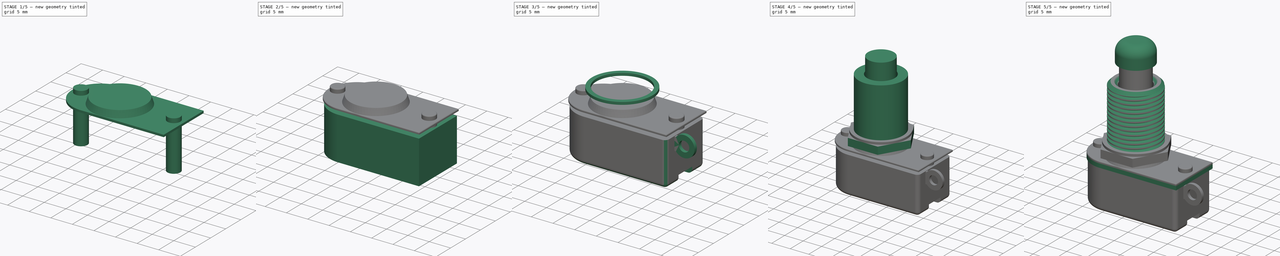
[diagram: build sequence overview — one tinted view per stage of 5, left to right]
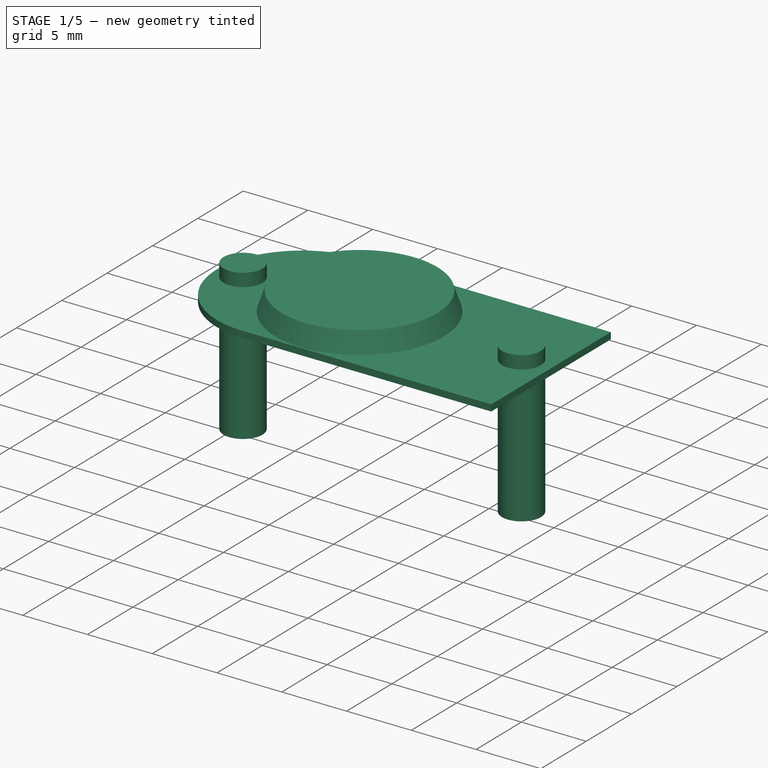
[diagram: stage 1 of 5 — iso view after this stage's code; geometry added in this stage tinted green]
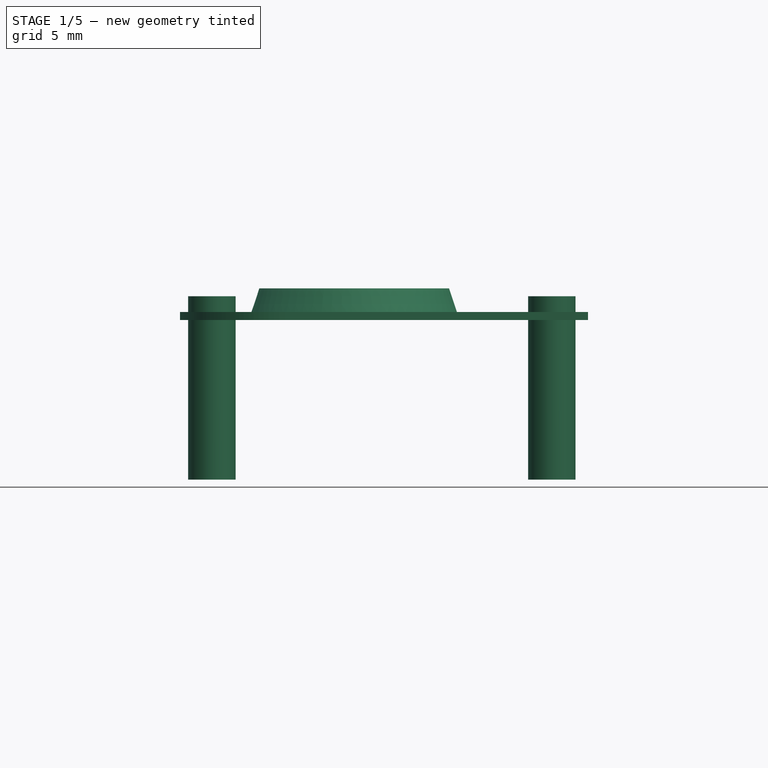
[diagram: stage 1 of 5 — front view after this stage's code; geometry added in this stage tinted green]
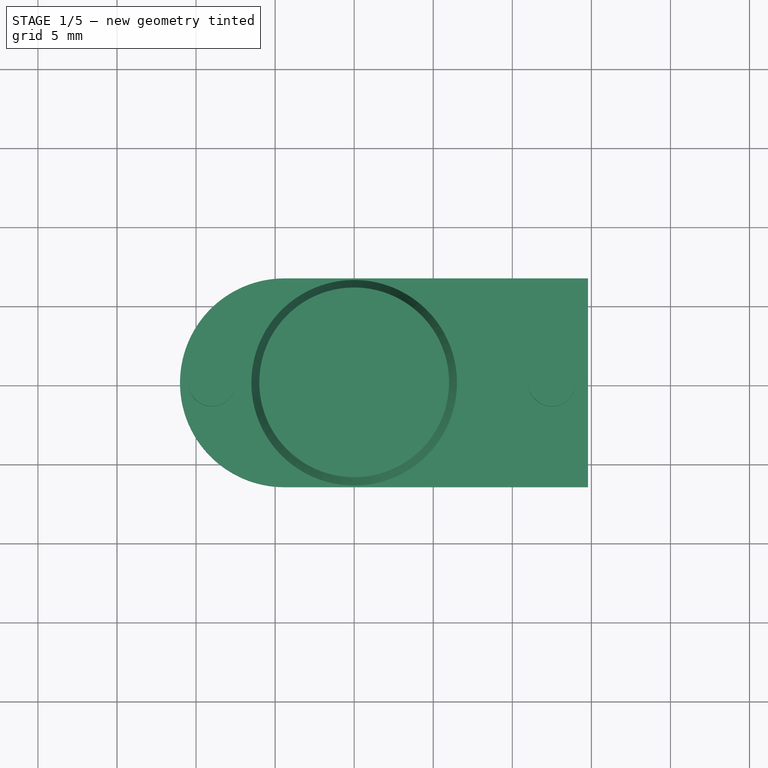
[diagram: stage 1 of 5 — top view after this stage's code; geometry added in this stage tinted green]
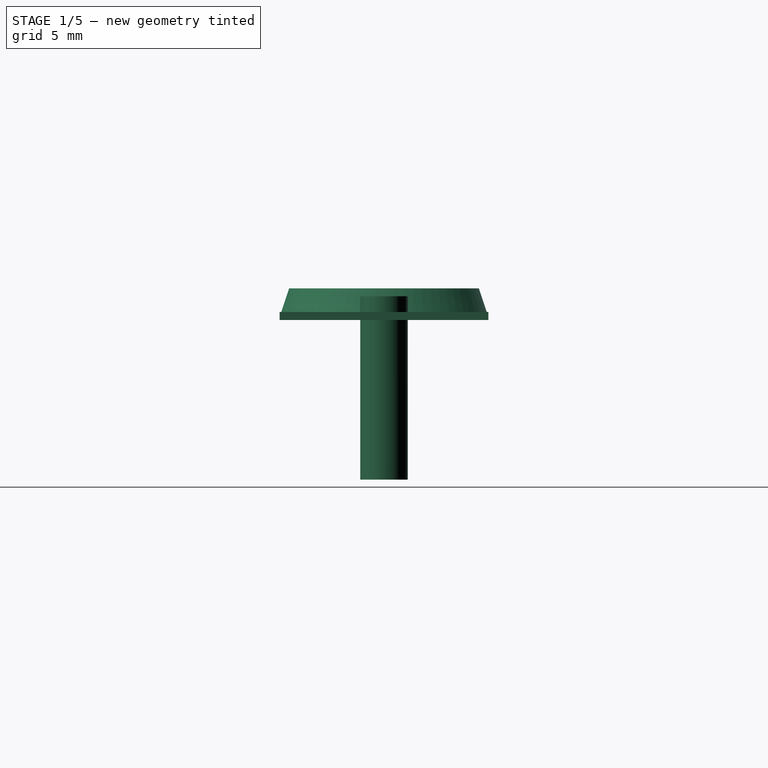
[diagram: stage 1 of 5 — right view after this stage's code; geometry added in this stage tinted green]
FCSTD DOCUMENT  (FreeCAD 0.19R16945 (Git))
Label: Soft Touch SPST Footswitch
License: All rights reserved
LicenseURL: http://en.wikipedia.org/wiki/All_rights_reserved
objects: Sketcher::SketchObject×19, PartDesign::Pad×11, PartDesign::Body×10, PartDesign::Pocket×5, PartDesign::Fillet×5, PartDesign::Plane×5, PartDesign::FeatureBase×2, PartDesign::Chamfer×1, Part::Helix×1, PartDesign::ShapeBinder×1, PartDesign::SubtractivePipe×1, PartDesign::AdditiveLoft×1
note: 80 computed .brp shape members not serialized (recipe doc carries the construction recipe); baked Part::Feature solids carry a one-line shape summary decoded from their .brp

FEATURE [PartDesign::Body] Body001  label="Wafer"
  Group = -> [Sketch001,Pad001]
  Origin = -> Origin001
  Tip = -> Pad001
FEATURE [Sketcher::SketchObject] Sketch002
  AttachmentOffset = pos=(0,0,11.1) rot=(0,0,1;0rad)
  MapMode = 5
  Placement = pos=(0,0,11.1) rot=(0,0,1;0rad)
  Support = -> [XY_Plane002]
  expr: Constraints[11] = Sketch001.Constraints[11]
  expr: Constraints[10] = Sketch001.Constraints[10]
  sketch-geometry (5):
    g0: ArcOfCircle CenterX=-4.41506 CenterY=0 CenterZ=0 NormalX=0 NormalY=0 NormalZ=1 AngleXU=0 Radius=6.6 StartAngle=1.5708 EndAngle=4.71239
    g1: LineSegment StartX=-4.41506 StartY=6.6 StartZ=0 EndX=14.7849 EndY=6.6 EndZ=0
    g2: LineSegment StartX=14.7849 StartY=6.6 StartZ=0 EndX=14.7849 EndY=-6.6 EndZ=0
    g3: LineSegment StartX=14.7849 StartY=-6.6 StartZ=0 EndX=-4.41506 EndY=-6.6 EndZ=0
    g4: GeomPoint X=-11.0151 Y=0 Z=0
  constraints (12):
    c: PointOnObject(g0,g-1)
    c: Tangent(g0,g1) = 1.5708
    c: Coincident(g1,g2)
    c: Coincident(g2,g3)
    c: Coincident(g3,g0)
    c: Horizontal(g3)
    c: Horizontal(g1)
    c: Symmetric(g1,g2,g-1)
    c: PointOnObject(g4,g0)
    c: PointOnObject(g4,g-1)
    c: DistanceX(g4,g2) = 25.8
    c: DistanceY(g2,g2) = 13.2
FEATURE [PartDesign::Pad] Pad002
  Length = 0.5
  Length2 = 100
  Profile = -> Sketch002
  Type = 0
FEATURE [PartDesign::Body] Body003  label="Shaft"
  Group = -> [Sketch005,Pad003,Sketch006,Pocket002,Sketch007,Pad004,Sketch008,Pad005,Fillet,Chamfer,ShapeBinder,Sketch009,SubtractivePipe]
  Origin = -> Origin003
  Placement = pos=(1,0,0) rot=(0,0,1;0rad)
  Tip = -> SubtractivePipe
FEATURE [Sketcher::SketchObject] Sketch010
  MapMode = 5
  Placement = pos=(0,0,11.6) rot=(0,0,1;0rad)
  Support = -> [Pad002]
  sketch-geometry (1):
    g0: Circle CenterX=0 CenterY=0 CenterZ=0 NormalX=0 NormalY=0 NormalZ=1 AngleXU=0 Radius=6.5
  constraints (2):
    c: Coincident(g0,g-1)
    c: Radius(g0) = 6.5
FEATURE [Sketcher::SketchObject] Sketch011
  AttachmentOffset = pos=(0,0,1.5) rot=(0,0,1;0rad)
  MapMode = 5
  Placement = pos=(0,0,13.1) rot=(0,0,1;0rad)
  Support = -> [Pad002]
  sketch-geometry (1):
    g0: Circle CenterX=0 CenterY=0 CenterZ=0 NormalX=0 NormalY=0 NormalZ=1 AngleXU=0 Radius=6
  constraints (2):
    c: Coincident(g0,g-1)
    c: Radius(g0) = 6
FEATURE [PartDesign::AdditiveLoft] AdditiveLoft
  BaseFeature = -> Pad002
  Closed = true
  Profile = -> Sketch010
  Ruled = false
  Sections = -> [Sketch011]
FEATURE [Sketcher::SketchObject] Sketch012
  MapMode = 5
  Placement = pos=(0,0,11.6) rot=(0,0,1;0rad)
  Support = -> [AdditiveLoft]
  sketch-geometry (1):
    g0: Circle CenterX=12.5 CenterY=0 CenterZ=0 NormalX=0 NormalY=0 NormalZ=1 AngleXU=0 Radius=1.5
  constraints (3):
    c: PointOnObject(g0,g-1)
    c: Radius(g0) = 1.5
    c: DistanceX(g-1,g0) = 12.5
FEATURE [PartDesign::Pad] Pad006
  BaseFeature = -> AdditiveLoft
  Length = 1
  Length2 = 10.6
  Profile = -> Sketch012
  Type = 4
FEATURE [Sketcher::SketchObject] Sketch013
  MapMode = 5
  Placement = pos=(0,0,11.6) rot=(0,0,1;0rad)
  Support = -> [Pad006]
  sketch-geometry (1):
    g0: Circle CenterX=-9 CenterY=0 CenterZ=0 NormalX=0 NormalY=0 NormalZ=1 AngleXU=0 Radius=1.5
  constraints (3):
    c: PointOnObject(g0,g-1)
    c: Radius(g0) = 1.5
    c: DistanceX(g0,g-1) = 9
FEATURE [PartDesign::Pad] Pad007
  BaseFeature = -> Pad006
  Length = 1
  Length2 = 10.6
  Profile = -> Sketch013
  Type = 4
FEATURE [PartDesign::Body] Body006  label="Washer"
  Group = -> [Sketch015,Pad009]
  Origin = -> Origin006
  Placement = pos=(1,0,0) rot=(0,0,1;0rad)
  Tip = -> Pad009
FEATURE [Sketcher::SketchObject] Sketch016
  ExternalGeometry = -> [Pad007]
  MapMode = 5
  Placement = pos=(0,0,1) rot=(1,0,0;3.14159rad)
  Support = -> [Pad007]
  sketch-geometry (1):
    g0: Circle CenterX=12.5 CenterY=0 CenterZ=0 NormalX=0 NormalY=0 NormalZ=1 AngleXU=0 Radius=1
  constraints (2):
    c: Coincident(g0,g-3)
    c: Radius(g0) = 1
FEATURE [PartDesign::Pocket] Pocket003
  BaseFeature = -> Pad007
  Length = 0.25
  Length2 = 100
  Profile = -> Sketch016
  Type = 0
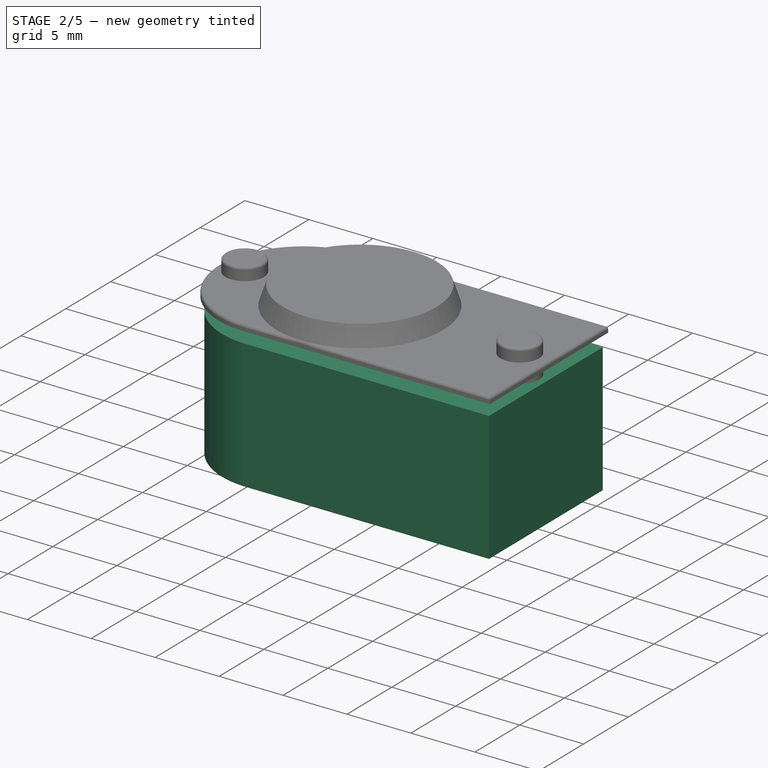
[diagram: stage 2 of 5 — iso view after this stage's code; geometry added in this stage tinted green]
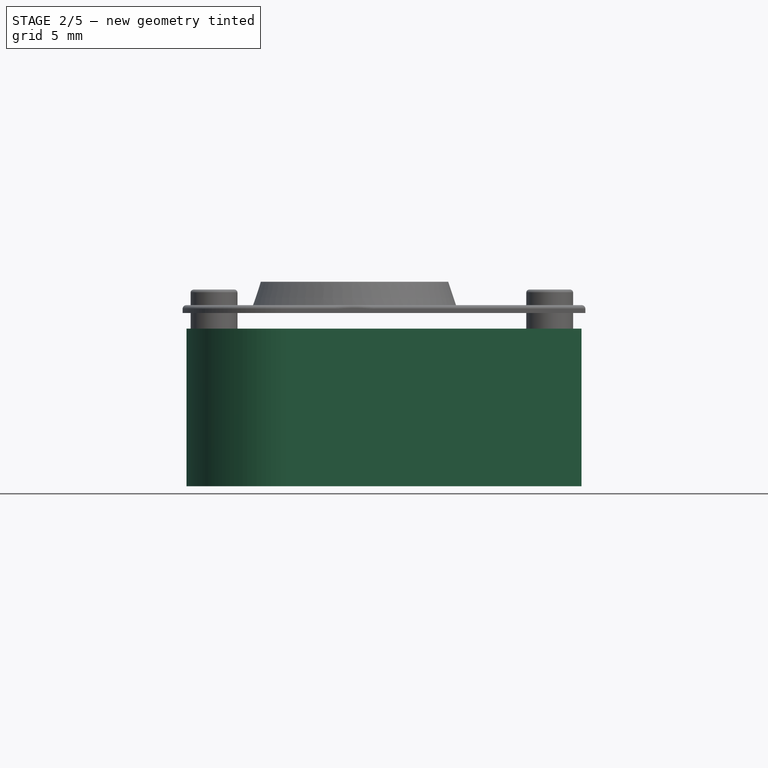
[diagram: stage 2 of 5 — front view after this stage's code; geometry added in this stage tinted green]
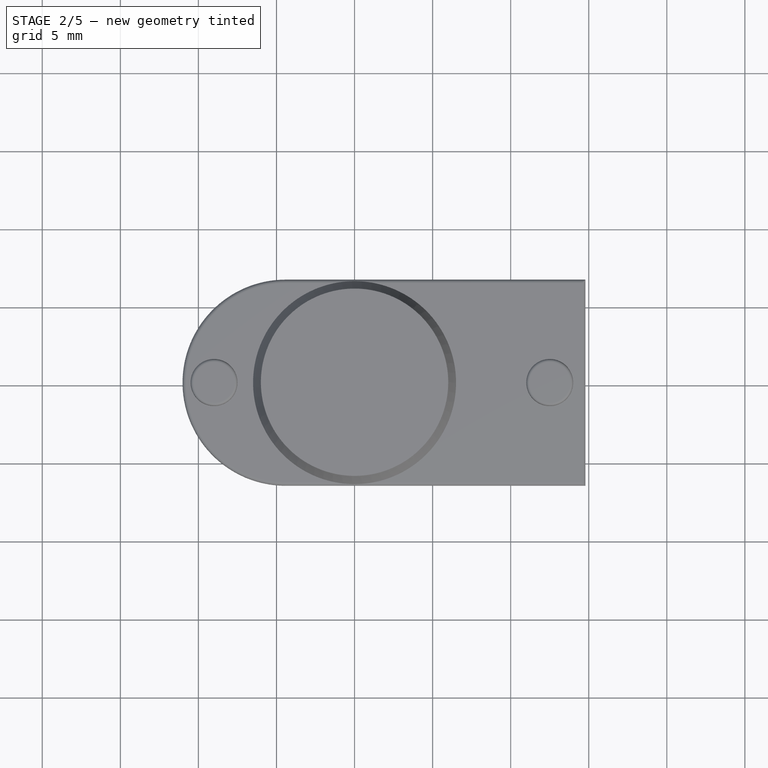
[diagram: stage 2 of 5 — top view after this stage's code; geometry added in this stage tinted green]
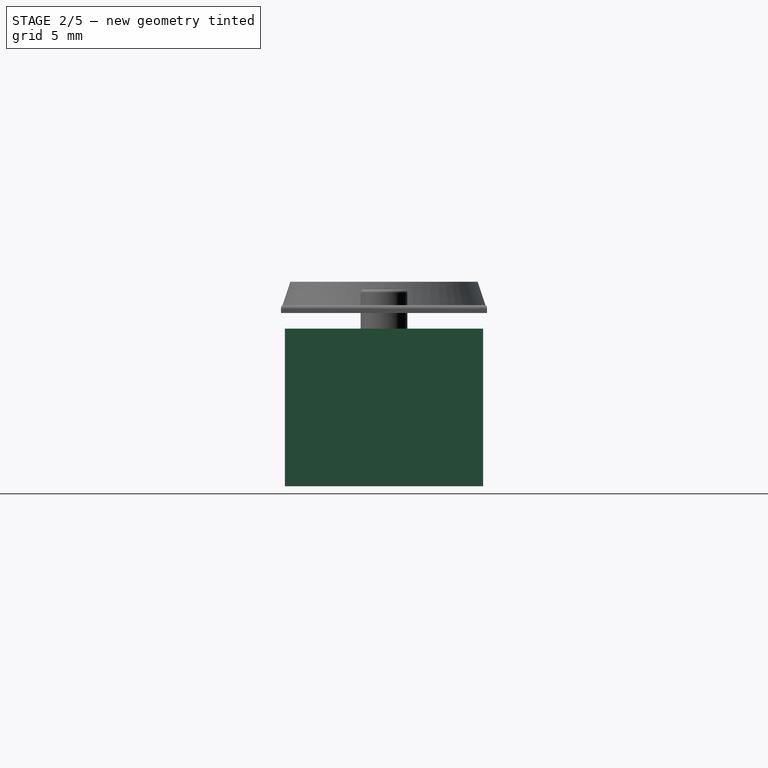
[diagram: stage 2 of 5 — right view after this stage's code; geometry added in this stage tinted green]
FEATURE [Sketcher::SketchObject] Sketch  label="BodyBottomSketch"
  MapMode = 5
  Support = -> [XY_Plane]
  sketch-geometry (5):
    g0: ArcOfCircle CenterX=-4.41112 CenterY=0 CenterZ=0 NormalX=0 NormalY=0 NormalZ=1 AngleXU=0 Radius=6.35 StartAngle=1.5708 EndAngle=4.71239
    g1: LineSegment StartX=-4.41112 StartY=6.35 StartZ=0 EndX=14.5389 EndY=6.35 EndZ=0
    g2: LineSegment StartX=14.5389 StartY=6.35 StartZ=0 EndX=14.5389 EndY=-6.35 EndZ=0
    g3: LineSegment StartX=14.5389 StartY=-6.35 StartZ=0 EndX=-4.41112 EndY=-6.35 EndZ=0
    g4: GeomPoint X=-10.7611 Y=0 Z=0
  constraints (12):
    c: PointOnObject(g0,g-1)
    c: Tangent(g0,g1) = 1.5708
    c: Coincident(g1,g2)
    c: Coincident(g2,g3)
    c: Coincident(g3,g0)
    c: Horizontal(g3)
    c: Horizontal(g1)
    c: Symmetric(g1,g2,g-1)
    c: PointOnObject(g4,g0)
    c: PointOnObject(g4,g-1)
    c: DistanceX(g4,g2) = 25.3
    c: DistanceY(g2,g2) = 12.7
FEATURE [PartDesign::Pad] Pad
  Length = 10.1
  Length2 = 100
  Profile = -> Sketch
  Type = 0
FEATURE [Sketcher::SketchObject] Sketch017
  ExternalGeometry = -> [Pocket003]
  MapMode = 5
  Placement = pos=(0,0,1) rot=(1,0,0;3.14159rad)
  Support = -> [Pocket003]
  sketch-geometry (1):
    g0: Circle CenterX=-9 CenterY=0 CenterZ=0 NormalX=0 NormalY=0 NormalZ=1 AngleXU=0 Radius=1
  constraints (2):
    c: Coincident(g0,g-3)
    c: Radius(g0) = 1
FEATURE [PartDesign::Pocket] Pocket004
  BaseFeature = -> Pocket003
  Length = 0.25
  Length2 = 100
  Profile = -> Sketch017
  Type = 0
FEATURE [PartDesign::Fillet] Fillet001
  Base = -> Pocket004 [Edge20,Edge29,Edge18,Edge28]
  BaseFeature = -> Pocket004
  Radius = 0.2
FEATURE [PartDesign::Fillet] Fillet002
  Base = -> Fillet001 [Edge32,Edge36]
  BaseFeature = -> Fillet001
  Radius = 0.2
FEATURE [PartDesign::Body] Body
  Group = -> [Sketch,Pad,Sketch003,Pocket,Sketch004,Pocket001,Fillet003]
  Origin = -> Origin
  Tip = -> Fillet003
FEATURE [PartDesign::Fillet] Fillet004
  Base = -> Fillet002 [Edge8,Edge9,Edge7,Edge6]
  BaseFeature = -> Fillet002
  Radius = 0.24
FEATURE [PartDesign::Body] Body002  label="Plate"
  Group = -> [Sketch002,Pad002,Sketch010,Sketch011,AdditiveLoft,Sketch012,Pad006,Sketch013,Pad007,Sketch016,Pocket003,Sketch017,Pocket004,Fillet001,Fillet002,Fillet004]
  Origin = -> Origin002
  Tip = -> Fillet004
FEATURE [PartDesign::Plane] DatumPlane003  label="midplane-11"
  AttachmentOffset = pos=(0,0,-11) rot=(0,0,1;0rad)
  Length = 24.2521
  MapMode = 5
  Placement = pos=(-11,2.4e-15,-2.4e-15) rot=(0.57735,0.57735,0.57735;2.0944rad)
  ResizeMode = 0
  Support = -> [YZ_Plane007]
  Width = 26.8521
FEATURE [PartDesign::Plane] DatumPlane004  label="midplane+14.6"
  AttachmentOffset = pos=(0,0,14.6) rot=(0,0,1;0rad)
  Length = 24.2521
  MapMode = 5
  Placement = pos=(14.6,-3.2e-15,3.2e-15) rot=(0.57735,0.57735,0.57735;2.0944rad)
  ResizeMode = 0
  Support = -> [YZ_Plane007]
  Width = 26.8521
FEATURE [PartDesign::Body] Body007  label="RefPlanes"
  Group = -> [DatumPlane,DatumPlane001,DatumPlane002,DatumPlane003,DatumPlane004]
  Origin = -> Origin007
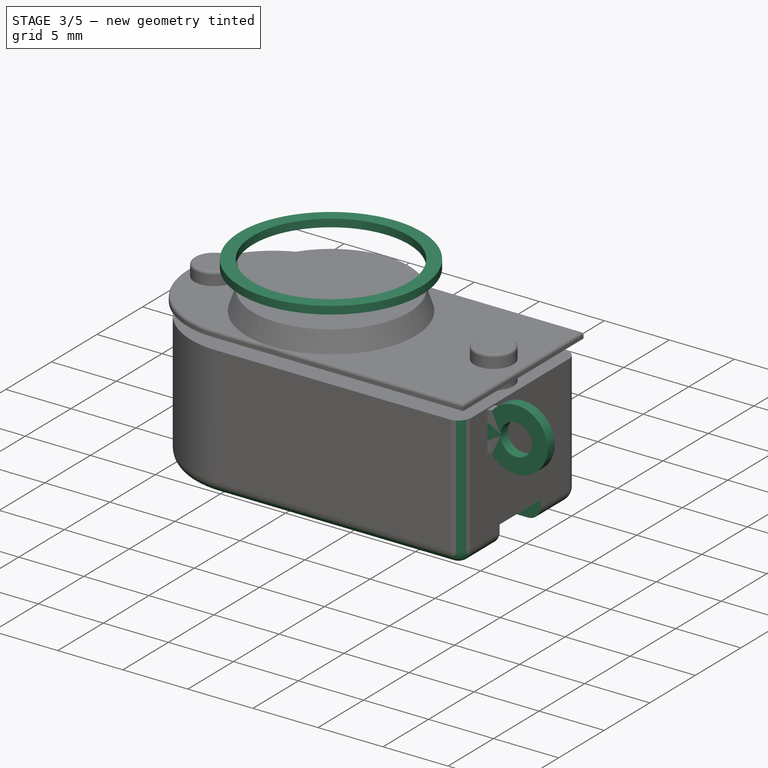
[diagram: stage 3 of 5 — iso view after this stage's code; geometry added in this stage tinted green]
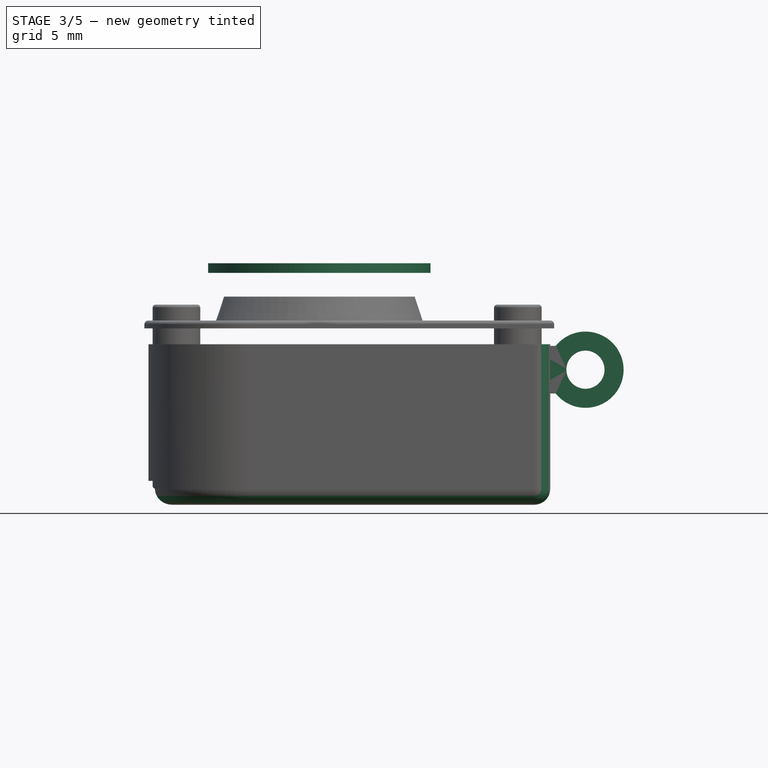
[diagram: stage 3 of 5 — front view after this stage's code; geometry added in this stage tinted green]
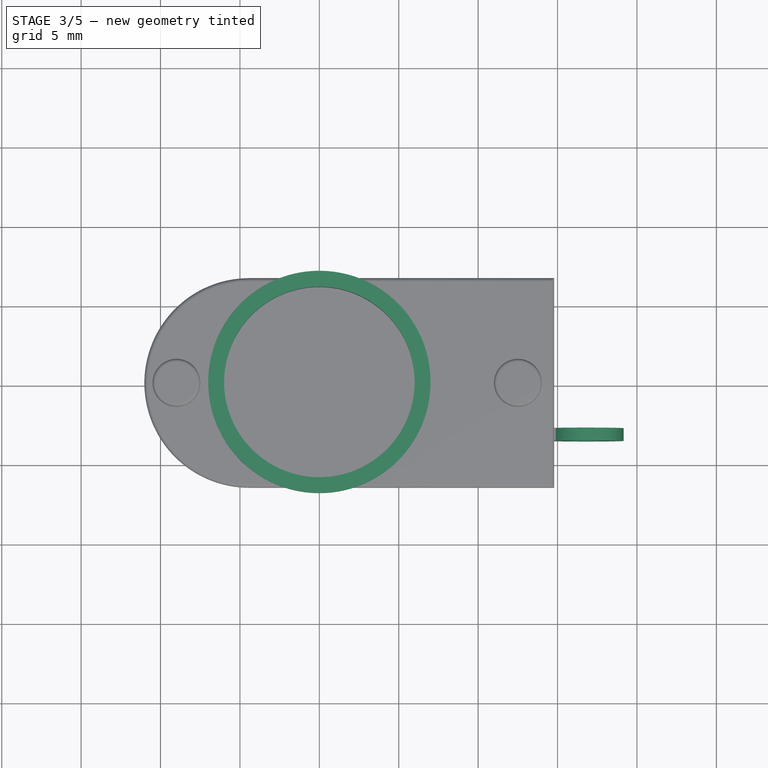
[diagram: stage 3 of 5 — top view after this stage's code; geometry added in this stage tinted green]
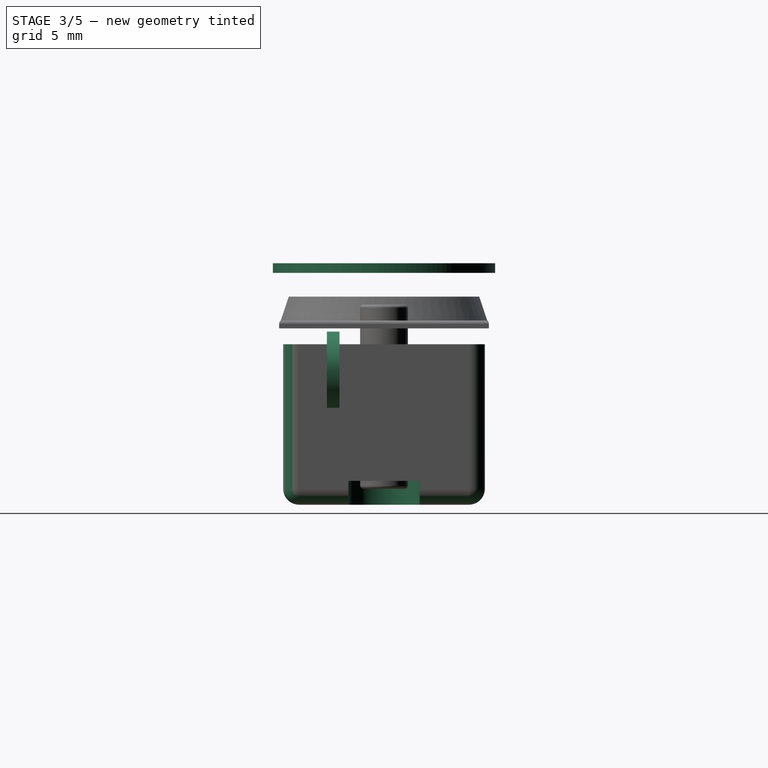
[diagram: stage 3 of 5 — right view after this stage's code; geometry added in this stage tinted green]
FEATURE [Sketcher::SketchObject] Sketch003
  ExternalGeometry = -> [Pad]
  MapMode = 5
  Support = -> [XY_Plane]
  sketch-geometry (5):
    g0: ArcOfCircle CenterX=12.2889 CenterY=0 CenterZ=0 NormalX=0 NormalY=0 NormalZ=1 AngleXU=0 Radius=2.25 StartAngle=1.5708 EndAngle=4.71239
    g1: LineSegment StartX=12.2889 StartY=2.25 StartZ=0 EndX=14.5389 EndY=2.25 EndZ=0
    g2: LineSegment StartX=12.2889 StartY=-2.25 StartZ=0 EndX=14.5389 EndY=-2.25 EndZ=0
    g3: LineSegment StartX=14.5389 StartY=2.25 StartZ=0 EndX=14.5389 EndY=-2.25 EndZ=0
    g4: GeomPoint X=10.0389 Y=0 Z=0
  constraints (14):
    c: PointOnObject(g0,g-1)
    c: Coincident(g1,g0)
    c: PointOnObject(g1,g-3)
    c: Horizontal(g1)
    c: Coincident(g2,g0)
    c: Symmetric(g1,g2,g-1)
    c: Coincident(g3,g1)
    c: Coincident(g3,g2)
    c: DistanceY(g3,g3) = 4.5
    c: PointOnObject(g4,g0)
    c: PointOnObject(g4,g-1)
    c: DistanceX(g4,g1) = 4.5
    c: Vertical(g0,g0)
    c: Vertical(g0,g0)
FEATURE [PartDesign::Pocket] Pocket
  BaseFeature = -> Pad
  Length = 1.5
  Length2 = 100
  Profile = -> Sketch003
  Reversed = true
  Type = 0
FEATURE [Sketcher::SketchObject] Sketch004
  MapMode = 5
  Support = -> [XY_Plane]
  sketch-geometry (5):
    g0: ArcOfCircle CenterX=-8.63201 CenterY=0 CenterZ=0 NormalX=0 NormalY=0 NormalZ=1 AngleXU=0 Radius=2.25 StartAngle=4.71239 EndAngle=7.85398
    g1: LineSegment StartX=-8.63201 StartY=2.25 StartZ=0 EndX=-10.882 EndY=2.25 EndZ=0
    g2: LineSegment StartX=-10.882 StartY=2.25 StartZ=0 EndX=-10.882 EndY=-2.25 EndZ=0
    g3: LineSegment StartX=-10.882 StartY=-2.25 StartZ=0 EndX=-8.63201 EndY=-2.25 EndZ=0
    g4: GeomPoint X=-6.38201 Y=0 Z=0
  constraints (13):
    c: PointOnObject(g0,g-1)
    c: Coincident(g1,g0)
    c: Horizontal(g1)
    c: Coincident(g2,g1)
    c: Coincident(g3,g2)
    c: Coincident(g3,g0)
    c: Horizontal(g3)
    c: Symmetric(g2,g1,g-1)
    c: DistanceY(g2,g2) = 4.5
    c: PointOnObject(g4,g0)
    c: PointOnObject(g4,g-1)
    c: DistanceX(g1,g4) = 4.5
    c: Vertical(g0,g0)
FEATURE [PartDesign::Pocket] Pocket001
  BaseFeature = -> Pocket
  Length = 1.5
  Length2 = 100
  Profile = -> Sketch004
  Reversed = true
  Type = 0
FEATURE [PartDesign::Body] Body005  label="Nut2"
  Group = -> [Clone]
  Origin = -> Origin005
  Placement = pos=(1,0,2.6) rot=(0,0,1;0rad)
  Tip = -> Clone
FEATURE [Sketcher::SketchObject] Sketch015
  AttachmentOffset = pos=(0,0,14.6) rot=(0,0,1;0rad)
  MapMode = 5
  Placement = pos=(0,0,14.6) rot=(0,0,1;0rad)
  Support = -> [XY_Plane006]
  sketch-geometry (2):
    g0: Circle CenterX=0 CenterY=0 CenterZ=0 NormalX=0 NormalY=0 NormalZ=1 AngleXU=0 Radius=6
    g1: Circle CenterX=0 CenterY=0 CenterZ=0 NormalX=0 NormalY=0 NormalZ=1 AngleXU=0 Radius=7
  constraints (4):
    c: Coincident(g0,g-1)
    c: Coincident(g1,g0)
    c: Radius(g0) = 6
    c: Radius(g1) = 7
FEATURE [PartDesign::Pad] Pad009
  Length = 0.6
  Length2 = 100
  Profile = -> Sketch015
  Type = 0
FEATURE [PartDesign::Plane] DatumPlane  label="z=0"
  Length = 30.1255
  MapMode = 5
  ResizeMode = 0
  Support = -> [XY_Plane007]
  Width = 24.5255
FEATURE [PartDesign::Plane] DatumPlane001  label="z=12.6"
  AttachmentOffset = pos=(0,0,12.6) rot=(0,0,1;0rad)
  Length = 30.1255
  MapMode = 5
  Placement = pos=(0,0,12.6) rot=(0,0,1;0rad)
  ResizeMode = 0
  Support = -> [XY_Plane007]
  Width = 24.5255
FEATURE [Sketcher::SketchObject] Sketch018
  AttachmentOffset = pos=(0,8.5,3.2) rot=(0,0,1;0rad)
  MapMode = 5
  Placement = pos=(0,-3.2,8.5) rot=(1,0,0;1.5708rad)
  Support = -> [XZ_Plane008]
  sketch-geometry (6):
    g0: Circle CenterX=16.7579 CenterY=0 CenterZ=0 NormalX=0 NormalY=0 NormalZ=1 AngleXU=0 Radius=1.2
    g1: ArcOfCircle CenterX=16.7579 CenterY=0 CenterZ=0 NormalX=0 NormalY=0 NormalZ=1 AngleXU=0 Radius=2.4 StartAngle=3.81672 EndAngle=8.74965
    g2: LineSegment StartX=14.8844 StartY=-1.5 StartZ=0 EndX=13.0579 EndY=-1.5 EndZ=0
    g3: GeomPoint X=19.1579 Y=0 Z=0
    g4: LineSegment StartX=14.8844 StartY=1.5 StartZ=0 EndX=13.0579 EndY=1.5 EndZ=0
    g5: LineSegment StartX=13.0579 StartY=1.5 StartZ=0 EndX=13.0579 EndY=-1.5 EndZ=0
  constraints (15):
    c: PointOnObject(g0,g-1)
    c: Radius(g0) = 1.2
    c: Coincident(g1,g0)
    c: Coincident(g2,g1)
    c: Horizontal(g2)
    c: Radius(g1) = 2.4
    c: PointOnObject(g3,g1)
    c: PointOnObject(g3,g-1)
    c: DistanceX(g2,g3) = 6.1
    c: Coincident(g4,g1)
    c: Horizontal(g4)
    c: Coincident(g5,g4)
    c: Coincident(g5,g2)
    c: Symmetric(g4,g2,g-1)
    c: DistanceY(g5,g5) = 3
FEATURE [PartDesign::Pad] Pad010
  Length = 0.8
  Length2 = 100
  Midplane = true
  Placement = pos=(0,0,0) rot=(1,0,0;1.5708rad)
  Profile = -> Sketch018
  Type = 0
FEATURE [PartDesign::Body] Body008  label="Pin1"
  Group = -> [Sketch018,Pad010]
  Origin = -> Origin008
  Tip = -> Pad010
FEATURE [PartDesign::FeatureBase] Clone001
  BaseFeature = -> Body008
FEATURE [PartDesign::Body] Body009  label="Pin2"
  Group = -> [Clone001]
  Origin = -> Origin009
  Placement = pos=(0,6.4,0) rot=(0,0,1;0rad)
  Tip = -> Clone001
FEATURE [PartDesign::Plane] DatumPlane002  label="midplane"
  Length = 24.2521
  MapMode = 5
  Placement = pos=(0,0,0) rot=(0.57735,0.57735,0.57735;2.0944rad)
  ResizeMode = 0
  Support = -> [YZ_Plane007]
  Width = 26.8521
FEATURE [PartDesign::Fillet] Fillet003
  Base = -> Pocket001 [Edge24,Edge28,Edge15,Edge14,Edge10,Edge9,Edge1,Edge5]
  BaseFeature = -> Pocket001
  Radius = 1
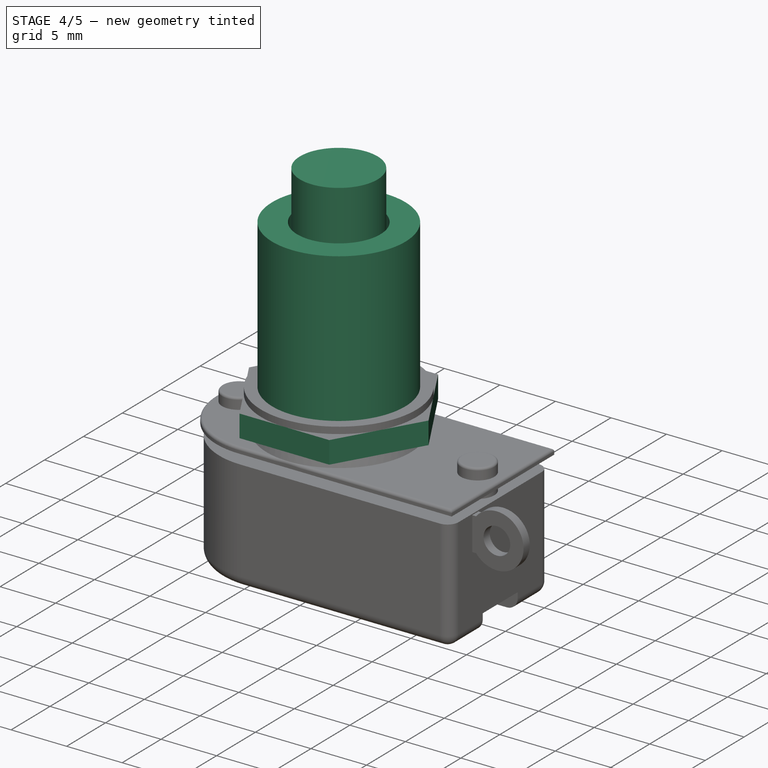
[diagram: stage 4 of 5 — iso view after this stage's code; geometry added in this stage tinted green]
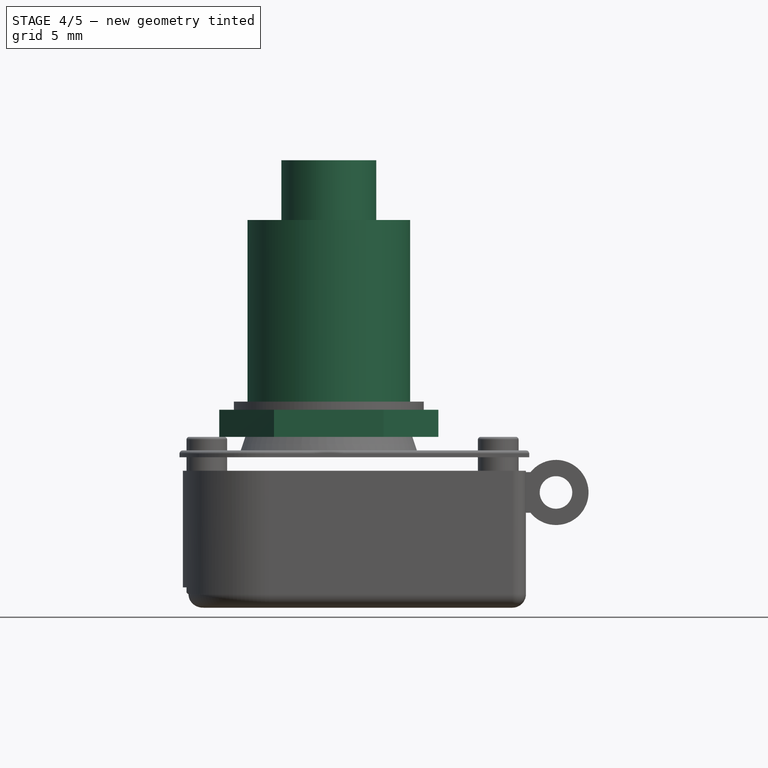
[diagram: stage 4 of 5 — front view after this stage's code; geometry added in this stage tinted green]
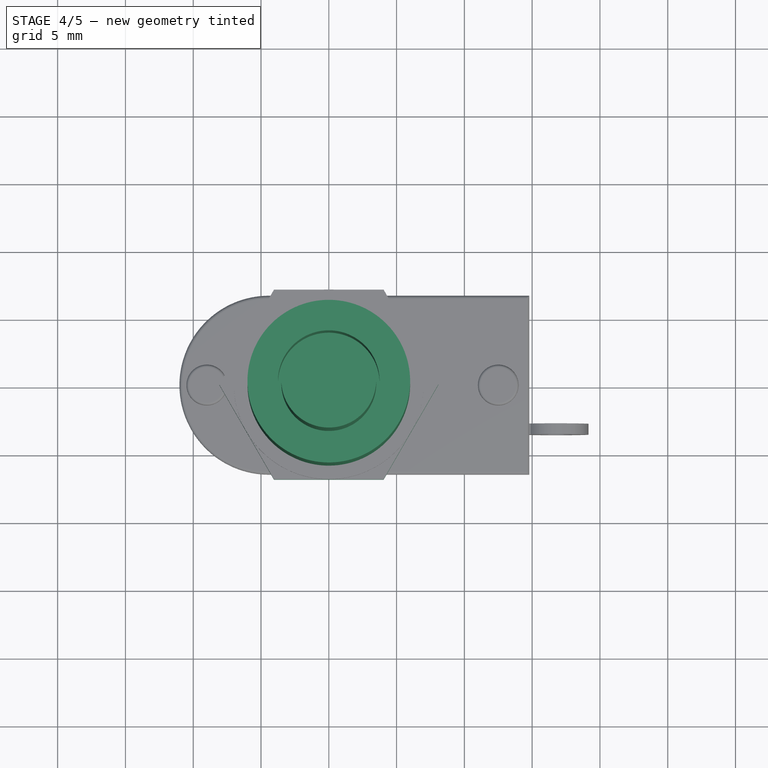
[diagram: stage 4 of 5 — top view after this stage's code; geometry added in this stage tinted green]
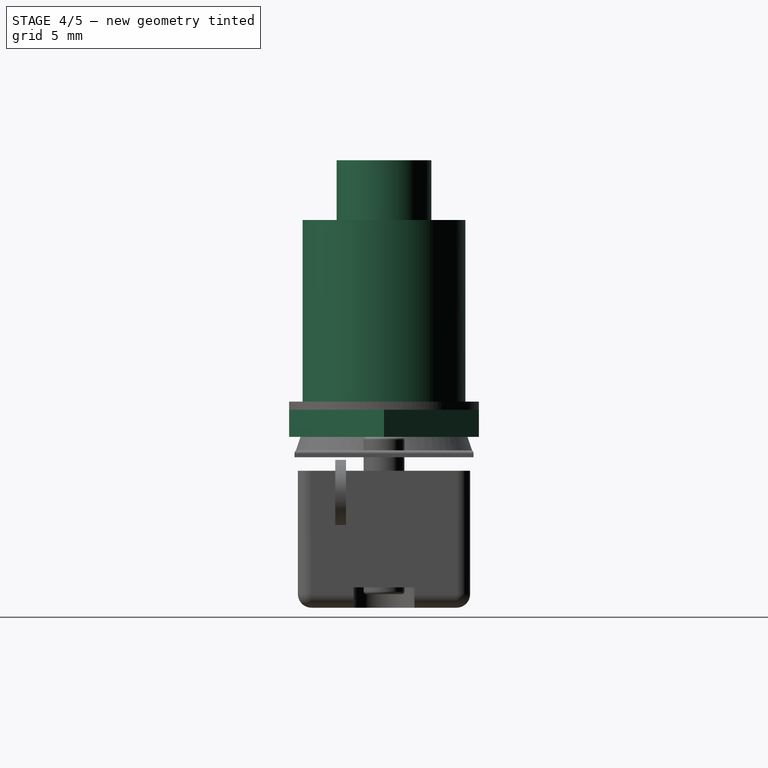
[diagram: stage 4 of 5 — right view after this stage's code; geometry added in this stage tinted green]
FEATURE [Sketcher::SketchObject] Sketch005
  AttachmentOffset = pos=(0,0,12.6) rot=(0,0,1;3.14159rad)
  MapMode = 5
  Placement = pos=(0,0,12.6) rot=(0,0,1;3.14159rad)
  Support = -> [XY_Plane003]
  sketch-geometry (1):
    g0: Circle CenterX=0 CenterY=0 CenterZ=0 NormalX=0 NormalY=0 NormalZ=1 AngleXU=0 Radius=6
  constraints (2):
    c: Coincident(g0,g-1)
    c: Radius(g0) = 6
FEATURE [PartDesign::Pad] Pad003
  Length = 16
  Length2 = 100
  Profile = -> Sketch005
  Type = 0
FEATURE [Sketcher::SketchObject] Sketch006
  MapMode = 5
  Placement = pos=(0,0,28.6) rot=(0,0,1;0rad)
  Support = -> [Pad003]
  sketch-geometry (1):
    g0: Circle CenterX=0 CenterY=0 CenterZ=0 NormalX=0 NormalY=0 NormalZ=1 AngleXU=0 Radius=3.75
  constraints (2):
    c: Coincident(g0,g-1)
    c: Radius(g0) = 3.75
FEATURE [PartDesign::Pocket] Pocket002
  BaseFeature = -> Pad003
  Length = 10
  Length2 = 100
  Profile = -> Sketch006
  Type = 0
FEATURE [Sketcher::SketchObject] Sketch007
  AttachmentOffset = pos=(0,0,0) rot=(0,0,1;3.14159rad)
  MapMode = 5
  Placement = pos=(0,0,18.6) rot=(0,0,1;3.14159rad)
  Support = -> [Pocket002]
  sketch-geometry (1):
    g0: Circle CenterX=0 CenterY=0 CenterZ=0 NormalX=0 NormalY=0 NormalZ=1 AngleXU=0 Radius=3.5
  constraints (2):
    c: Coincident(g0,g-1)
    c: Radius(g0) = 3.5
FEATURE [PartDesign::Pad] Pad004
  BaseFeature = -> Pocket002
  Length = 14.4
  Length2 = 100
  Profile = -> Sketch007
  Type = 0
FEATURE [Sketcher::SketchObject] Sketch014
  AttachmentOffset = pos=(0,0,12.6) rot=(0,0,1;0rad)
  MapMode = 5
  Placement = pos=(0,0,12.6) rot=(0,0,1;0rad)
  Support = -> [XY_Plane004]
  sketch-geometry (8):
    g0: Circle CenterX=0 CenterY=0 CenterZ=0 NormalX=0 NormalY=0 NormalZ=1 AngleXU=0 Radius=6
    g1: LineSegment StartX=4.04145 StartY=7 StartZ=0 EndX=-4.04145 EndY=7 EndZ=0
    g2: LineSegment StartX=-4.04145 StartY=7 StartZ=0 EndX=-8.0829 EndY=1.469e-12 EndZ=0
    g3: LineSegment StartX=-8.0829 StartY=1.469e-12 StartZ=0 EndX=-4.04145 EndY=-7 EndZ=0
    g4: LineSegment StartX=-4.04145 StartY=-7 StartZ=0 EndX=4.04145 EndY=-7 EndZ=0
    g5: LineSegment StartX=4.04145 StartY=-7 StartZ=0 EndX=8.0829 EndY=1.2914e-12 EndZ=0
    g6: LineSegment StartX=8.0829 StartY=1.2914e-12 StartZ=0 EndX=4.04145 EndY=7 EndZ=0
    g7: Circle [constr] CenterX=0 CenterY=0 CenterZ=0 NormalX=0 NormalY=0 NormalZ=1 AngleXU=0 Radius=8.0829
  constraints (18):
    c: Coincident(g0,g-1)
    c: Radius(g0) = 6
    c: Coincident(g1,g2)
    c: Coincident(g2,g3)
    c: Coincident(g3,g4)
    c: Coincident(g4,g5)
    c: Coincident(g5,g6)
    c: Coincident(g6,g1)
    c: Equal(g1, g2-g6) x5
    c: PointOnObject(g1,g7)
    c: PointOnObject(g2,g7)
    c: PointOnObject(g3,g7)
    c: PointOnObject(g4,g7)
    c: PointOnObject(g5,g7)
    c: PointOnObject(g6,g7)
    c: Coincident(g7,g0)
    c: Horizontal(g1)
    c: DistanceY(g4,g1) = 14
FEATURE [PartDesign::Pad] Pad008
  Length = 2
  Length2 = 100
  Profile = -> Sketch014
  Type = 0
FEATURE [PartDesign::Body] Body004  label="Nut1"
  Group = -> [Sketch014,Pad008]
  Origin = -> Origin004
  Placement = pos=(1,0,0) rot=(0,0,1;0rad)
  Tip = -> Pad008
FEATURE [PartDesign::FeatureBase] Clone
  BaseFeature = -> Body004
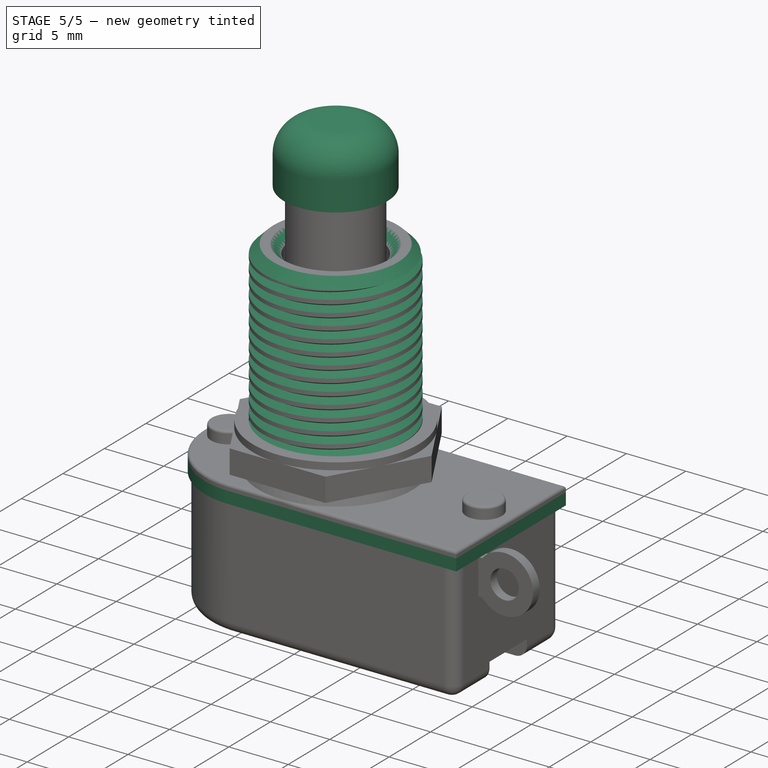
[diagram: stage 5 of 5 — iso view after this stage's code; geometry added in this stage tinted green]
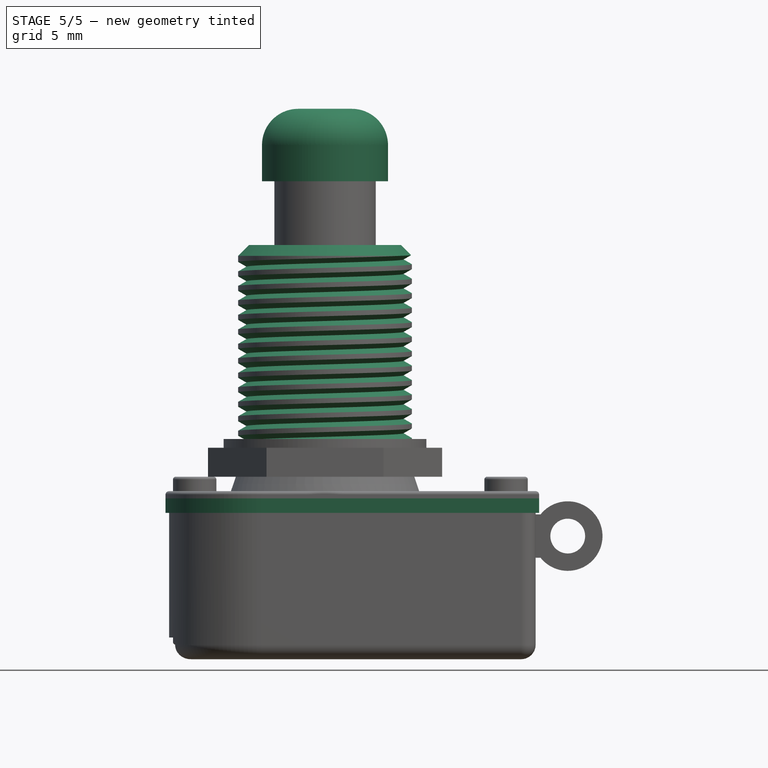
[diagram: stage 5 of 5 — front view after this stage's code; geometry added in this stage tinted green]
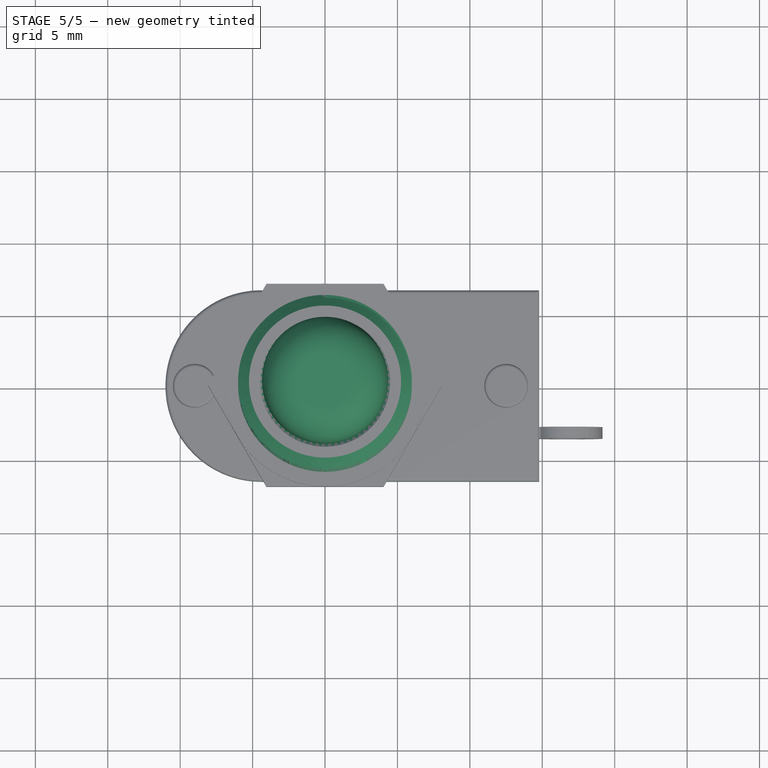
[diagram: stage 5 of 5 — top view after this stage's code; geometry added in this stage tinted green]
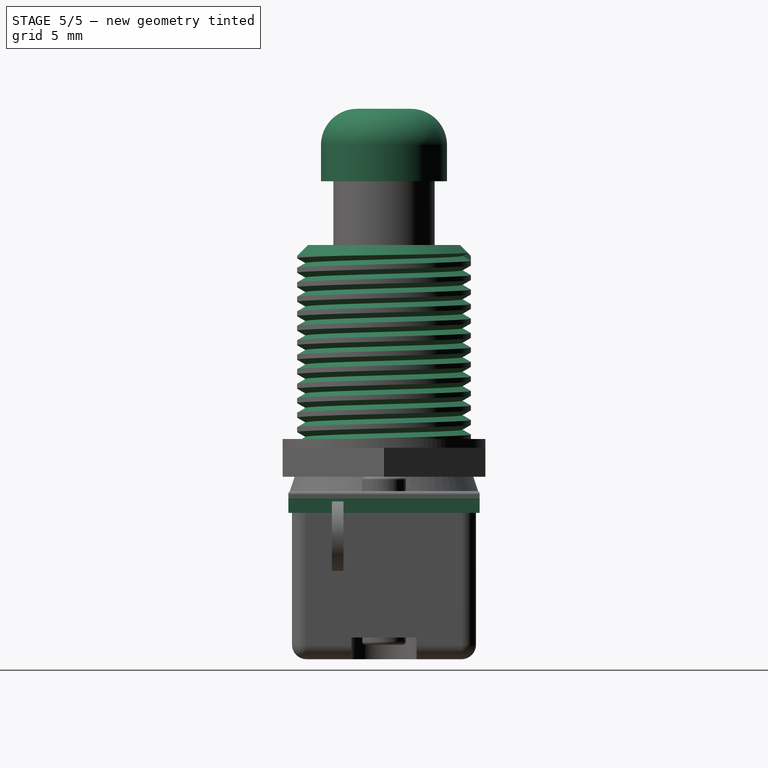
[diagram: stage 5 of 5 — right view after this stage's code; geometry added in this stage tinted green]
FEATURE [Sketcher::SketchObject] Sketch001
  AttachmentOffset = pos=(0,0,10.1) rot=(0,0,1;0rad)
  MapMode = 5
  Placement = pos=(0,0,10.1) rot=(0,0,1;0rad)
  Support = -> [XY_Plane001]
  sketch-geometry (5):
    g0: ArcOfCircle CenterX=-4.41506 CenterY=0 CenterZ=0 NormalX=0 NormalY=0 NormalZ=1 AngleXU=0 Radius=6.6 StartAngle=1.5708 EndAngle=4.71239
    g1: LineSegment StartX=-4.41506 StartY=6.6 StartZ=0 EndX=14.7849 EndY=6.6 EndZ=0
    g2: LineSegment StartX=14.7849 StartY=6.6 StartZ=0 EndX=14.7849 EndY=-6.6 EndZ=0
    g3: LineSegment StartX=14.7849 StartY=-6.6 StartZ=0 EndX=-4.41506 EndY=-6.6 EndZ=0
    g4: GeomPoint X=-11.0151 Y=0 Z=0
  constraints (12):
    c: PointOnObject(g0,g-1)
    c: Tangent(g0,g1) = 1.5708
    c: Coincident(g1,g2)
    c: Coincident(g2,g3)
    c: Coincident(g3,g0)
    c: Horizontal(g3)
    c: Horizontal(g1)
    c: Symmetric(g1,g2,g-1)
    c: PointOnObject(g4,g0)
    c: PointOnObject(g4,g-1)
    c: DistanceX(g4,g2) = 25.8
    c: DistanceY(g2,g2) = 13.2
FEATURE [PartDesign::Pad] Pad001
  Length = 1
  Length2 = 100
  Profile = -> Sketch001
  Type = 0
FEATURE [Sketcher::SketchObject] Sketch008
  AttachmentOffset = pos=(0,0,0) rot=(0,0,1;3.14159rad)
  MapMode = 5
  Placement = pos=(0,0,33) rot=(0,0,1;3.14159rad)
  Support = -> [Pad004]
  sketch-geometry (1):
    g0: Circle CenterX=0 CenterY=0 CenterZ=0 NormalX=0 NormalY=0 NormalZ=1 AngleXU=0 Radius=4.35
  constraints (2):
    c: Coincident(g0,g-1)
    c: Radius(g0) = 4.35
FEATURE [PartDesign::Pad] Pad005
  BaseFeature = -> Pad004
  Length = 5
  Length2 = 100
  Profile = -> Sketch008
  Type = 0
FEATURE [PartDesign::Fillet] Fillet
  Base = -> Pad005 [Edge3]
  BaseFeature = -> Pad005
  Radius = 2.5
FEATURE [PartDesign::Chamfer] Chamfer
  Base = -> Fillet [Edge11,Edge12]
  BaseFeature = -> Fillet
  Size = 0.75
FEATURE [Part::Helix] Helix
  Angle = 0
  AttacherType = Attacher::AttachEngine3D
  Height = 16
  LocalCoord = 0
  Pitch = 1
  Placement = pos=(0,0,12.6) rot=(0,0,1;1.5708rad)
  Radius = 6
  Style = 1
FEATURE [PartDesign::ShapeBinder] ShapeBinder
  Placement = pos=(0,0,12.6) rot=(0,0,1;1.5708rad)
  Support = -> [Helix]
  TraceSupport = false
FEATURE [Sketcher::SketchObject] Sketch009
  AttachmentOffset = pos=(0,12.6,0) rot=(0,0,1;0rad)
  MapMode = 5
  Placement = pos=(0,2.8e-15,12.6) rot=(1,0,0;1.5708rad)
  Support = -> [XZ_Plane003]
  sketch-geometry (4):
    g0: LineSegment StartX=5.42265 StartY=0 StartZ=0 EndX=6.28868 EndY=-0.5 EndZ=0
    g1: LineSegment StartX=6.28868 StartY=-0.5 StartZ=0 EndX=6.28868 EndY=0.5 EndZ=0
    g2: LineSegment StartX=6.28868 StartY=0.5 StartZ=0 EndX=5.42265 EndY=0 EndZ=0
    g3: Circle [constr] CenterX=6 CenterY=0 CenterZ=0 NormalX=0 NormalY=0 NormalZ=1 AngleXU=0 Radius=0.57735
  constraints (12):
    c: Coincident(g0,g1)
    c: Coincident(g1,g2)
    c: Coincident(g2,g0)
    c: Equal(g0,g1)
    c: Equal(g0,g2)
    c: PointOnObject(g0,g3)
    c: PointOnObject(g1,g3)
    c: PointOnObject(g2,g3)
    c: PointOnObject(g3,g-1)
    c: PointOnObject(g2,g-1)
    c: DistanceY(g1,g1) = 1
    c: DistanceX(g-1,g3) = 6
FEATURE [PartDesign::SubtractivePipe] SubtractivePipe
  AuxilleryCurvelinear = true
  AuxillerySpineTangent = false
  BaseFeature = -> Chamfer
  Binormal = (0,0,0)
  Mode = 2
  Profile = -> Sketch009
  Spine = -> ShapeBinder
  SpineTangent = false
  Transformation = 0
  Transition = 0
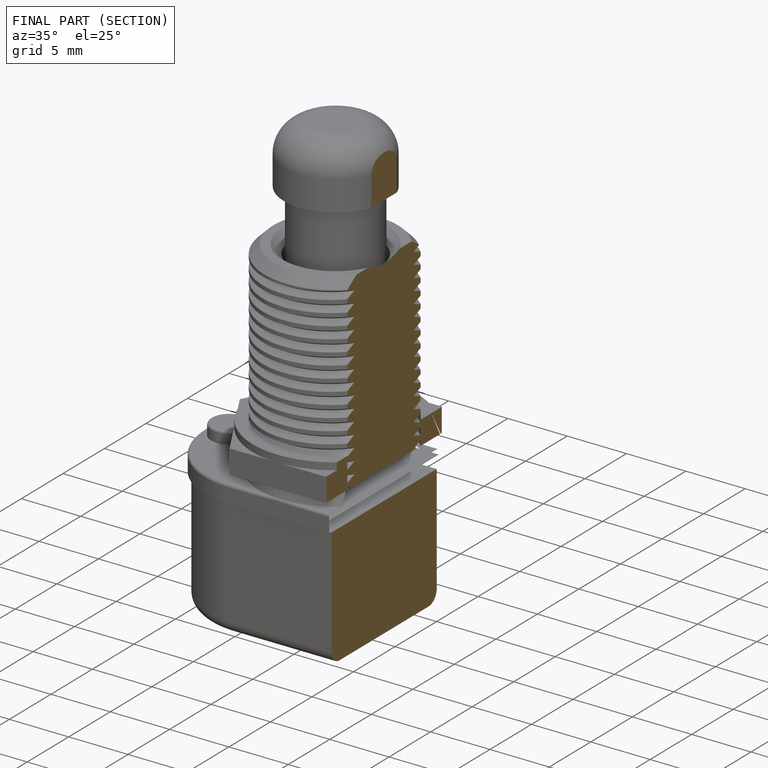
[diagram: finished part — half-section view (interior)]
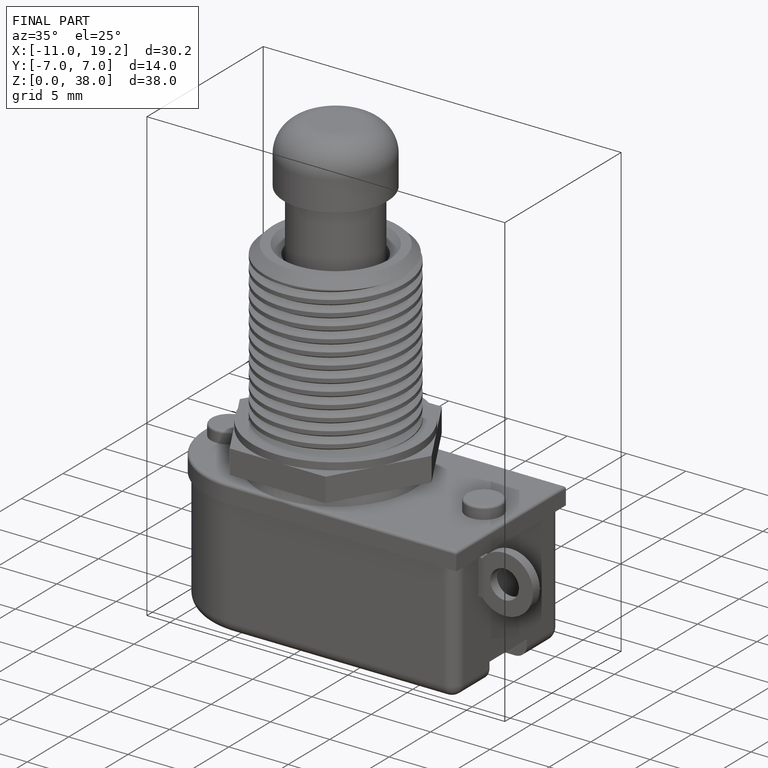
[diagram: finished part — iso view with bounding-box wireframe]
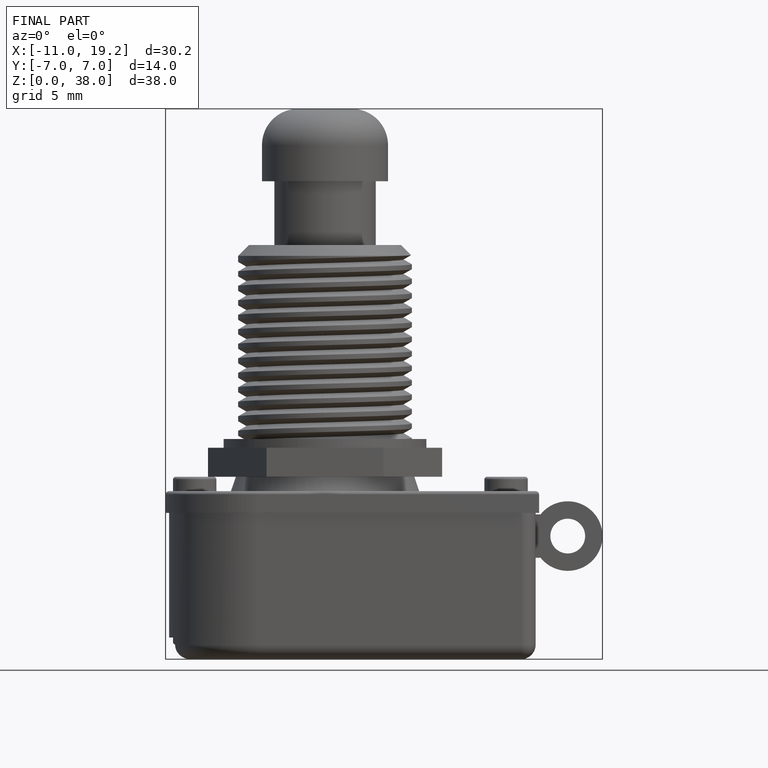
[diagram: finished part — front view with bounding-box wireframe]
